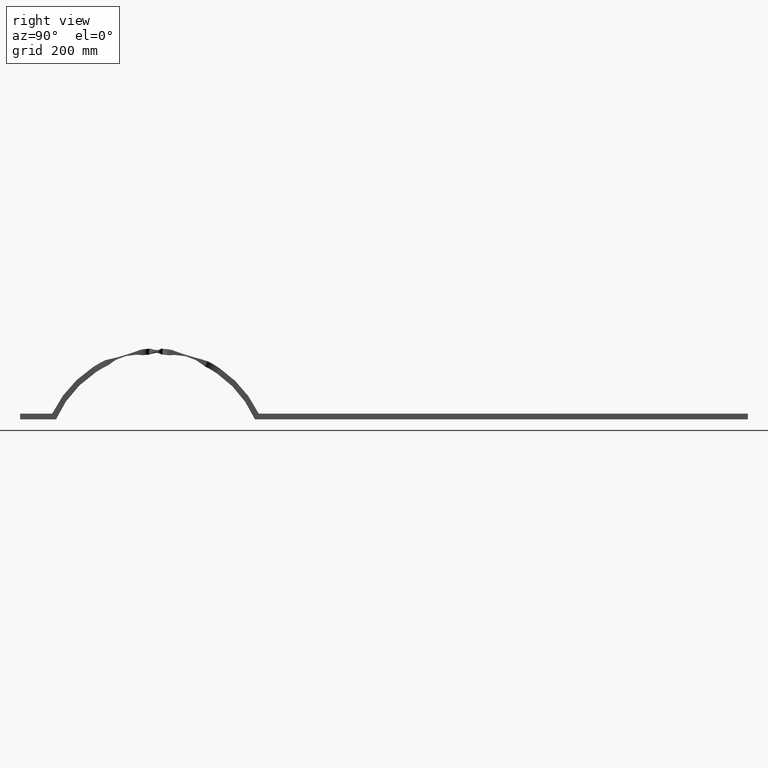
[diagram: clean part render]
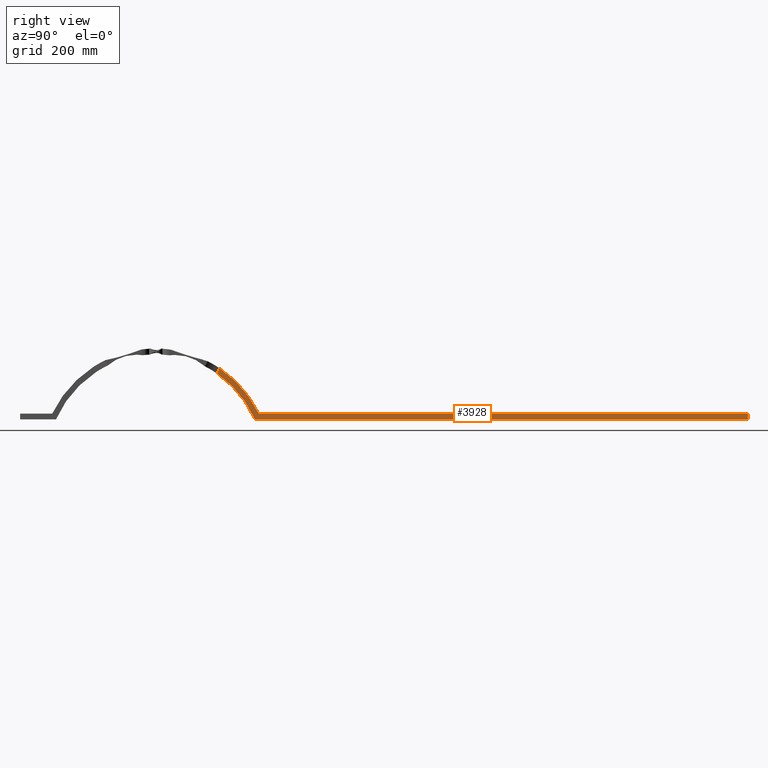
[diagram: same view with one face highlighted and labeled with its STEP entity id]
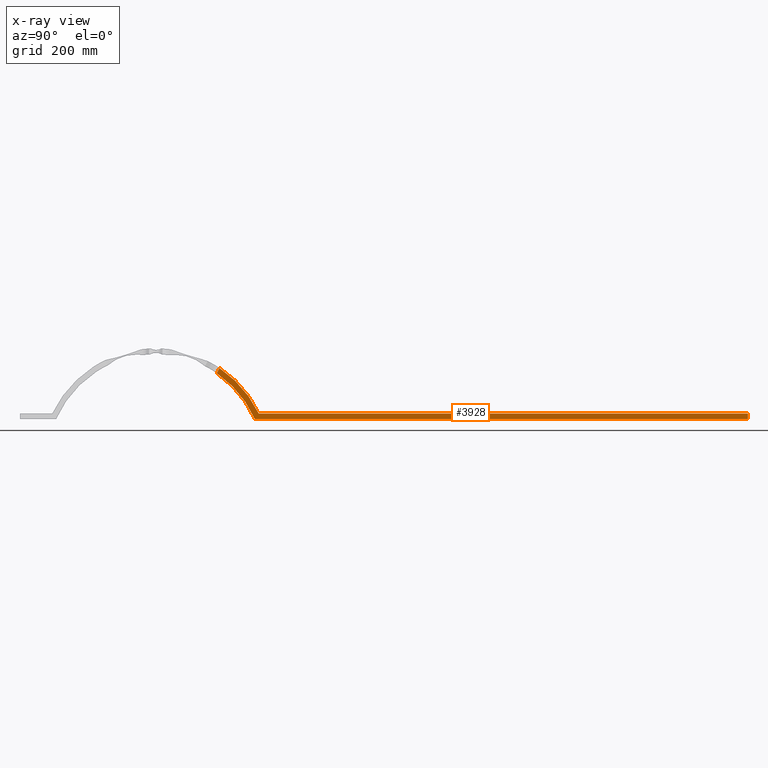
[diagram: x-ray of the same camera — body ghosted, the highlighted face saturated]
A machine part, right view. The second image highlights one B-rep face of the part: STEP entity #3928.
The next image is the same camera in x-ray: the body ghosted, the highlighted face saturated — about 0% of this face is hidden behind the body in this view.
In plain terms, the highlighted planar face has unit normal (1, 0, 0).
Its self-contained STEP definition (entity closure, byte-faithful):
#1641 = DIRECTION ( 'NONE',  ( 0.0000000000000000000, 0.0000000000000000000, 1.000000000000000000 ) ) ;
#2224 = LINE ( 'NONE', #14868, #5857 ) ;
#2585 = CARTESIAN_POINT ( 'NONE',  ( 12.00000000000000000, 1500.000000000000000, 3.797417691998145900E-014 ) ) ;
#3039 = CARTESIAN_POINT ( 'NONE',  ( 12.00000000000000000, 1500.000000000000000, 12.00000000000003900 ) ) ;
#3593 = VERTEX_POINT ( 'NONE', #7686 ) ;
#3714 = CIRCLE ( 'NONE', #6549, 223.9999999999999400 ) ;
#3828 = DIRECTION ( 'NONE',  ( -1.000000000000000000, -0.0000000000000000000, -0.0000000000000000000 ) ) ;
#3854 = ORIENTED_EDGE ( 'NONE', *, *, #12735, .T. ) ;
#3928 = ADVANCED_FACE ( 'NONE', ( #12247 ), #10899, .T. ) ;
#4016 = CIRCLE ( 'NONE', #9144, 235.9999999999999700 ) ;
#4108 = EDGE_CURVE ( 'NONE', #7216, #6373, #5388, .T. ) ;
#5388 = LINE ( 'NONE', #10009, #10812 ) ;
#5409 = DIRECTION ( 'NONE',  ( 1.000000000000000000, 0.0000000000000000000, 0.0000000000000000000 ) ) ;
#5499 = ORIENTED_EDGE ( 'NONE', *, *, #5841, .T. ) ;
#5841 = EDGE_CURVE ( 'NONE', #10935, #8665, #2224, .T. ) ;
#5857 = VECTOR ( 'NONE', #6910, 1000.000000000000000 ) ;
#6258 = ORIENTED_EDGE ( 'NONE', *, *, #8345, .T. ) ;
#6319 = DIRECTION ( 'NONE',  ( 0.0000000000000000000, 0.0000000000000000000, -1.000000000000000000 ) ) ;
#6373 = VERTEX_POINT ( 'NONE', #11872 ) ;
#6540 = DIRECTION ( 'NONE',  ( 0.0000000000000000000, -1.000000000000000000, -4.129553178358962500E-017 ) ) ;
#6549 = AXIS2_PLACEMENT_3D ( 'NONE', #10885, #3828, #12022 ) ;
#6639 = AXIS2_PLACEMENT_3D ( 'NONE', #8620, #13179, #6319 ) ;
#6703 = LINE ( 'NONE', #6730, #12754 ) ;
#6730 = CARTESIAN_POINT ( 'NONE',  ( 12.00000000000000000, 406.4362659624540600, 96.42692433644514000 ) ) ;
#6910 = DIRECTION ( 'NONE',  ( -0.0000000000000000000, 1.000000000000000000, 6.470255754153915100E-017 ) ) ;
#7120 = EDGE_LOOP ( 'NONE', ( #6258, #14133, #3854, #5499, #10243, #11952 ) ) ;
#7216 = VERTEX_POINT ( 'NONE', #3039 ) ;
#7686 = CARTESIAN_POINT ( 'NONE',  ( 12.00000000000000000, 411.1054090268184500, 105.5611436504117800 ) ) ;
#8345 = EDGE_CURVE ( 'NONE', #6373, #3593, #4016, .T. ) ;
#8409 = VERTEX_POINT ( 'NONE', #11327 ) ;
#8620 = CARTESIAN_POINT ( 'NONE',  ( 12.00000000000000000, 278.9999999999999400, -90.00000000000000000 ) ) ;
#8665 = VERTEX_POINT ( 'NONE', #2585 ) ;
#8757 = EDGE_CURVE ( 'NONE', #8665, #7216, #13111, .T. ) ;
#8880 = CARTESIAN_POINT ( 'NONE',  ( 12.00000000000000000, 484.1243525279238600, -2.775557561562891400E-014 ) ) ;
#9144 = AXIS2_PLACEMENT_3D ( 'NONE', #12324, #5409, #13455 ) ;
#9171 = EDGE_CURVE ( 'NONE', #3593, #8409, #6703, .T. ) ;
#9741 = VECTOR ( 'NONE', #1641, 1000.000000000000000 ) ;
#9956 = CARTESIAN_POINT ( 'NONE',  ( 12.00000000000000000, 1500.000000000000000, 3.797417691998145900E-014 ) ) ;
#10009 = CARTESIAN_POINT ( 'NONE',  ( 12.00000000000000000, 1500.000000000000000, 12.00000000000003900 ) ) ;
#10243 = ORIENTED_EDGE ( 'NONE', *, *, #8757, .T. ) ;
#10812 = VECTOR ( 'NONE', #6540, 1000.000000000000000 ) ;
#10885 = CARTESIAN_POINT ( 'NONE',  ( 12.00000000000000000, 278.9999999999999400, -90.00000000000000000 ) ) ;
#10899 = PLANE ( 'NONE',  #6639 ) ;
#10935 = VERTEX_POINT ( 'NONE', #8880 ) ;
#11327 = CARTESIAN_POINT ( 'NONE',  ( 12.00000000000000000, 405.6007660649544300, 94.79244040751955000 ) ) ;
#11872 = CARTESIAN_POINT ( 'NONE',  ( 12.00000000000000000, 491.8191720686836600, 11.99999999999999600 ) ) ;
#11952 = ORIENTED_EDGE ( 'NONE', *, *, #4108, .T. ) ;
#12022 = DIRECTION ( 'NONE',  ( 0.0000000000000000000, 0.0000000000000000000, -1.000000000000000000 ) ) ;
#12247 = FACE_OUTER_BOUND ( 'NONE', #7120, .T. ) ;
#12324 = CARTESIAN_POINT ( 'NONE',  ( 12.00000000000000000, 278.9999999999999400, -90.00000000000000000 ) ) ;
#12735 = EDGE_CURVE ( 'NONE', #8409, #10935, #3714, .T. ) ;
#12754 = VECTOR ( 'NONE', #14698, 1000.000000000000000 ) ;
#13111 = LINE ( 'NONE', #9956, #9741 ) ;
#13179 = DIRECTION ( 'NONE',  ( 1.000000000000000000, 0.0000000000000000000, 0.0000000000000000000 ) ) ;
#13455 = DIRECTION ( 'NONE',  ( 0.0000000000000000000, 0.0000000000000000000, -1.000000000000000000 ) ) ;
#14133 = ORIENTED_EDGE ( 'NONE', *, *, #9171, .T. ) ;
#14698 = DIRECTION ( 'NONE',  ( 0.0000000000000000000, -0.4551529568754966200, -0.8904132668865015800 ) ) ;
#14868 = CARTESIAN_POINT ( 'NONE',  ( 12.00000000000000000, 1500.000000000000000, 3.797417691998145900E-014 ) ) ;